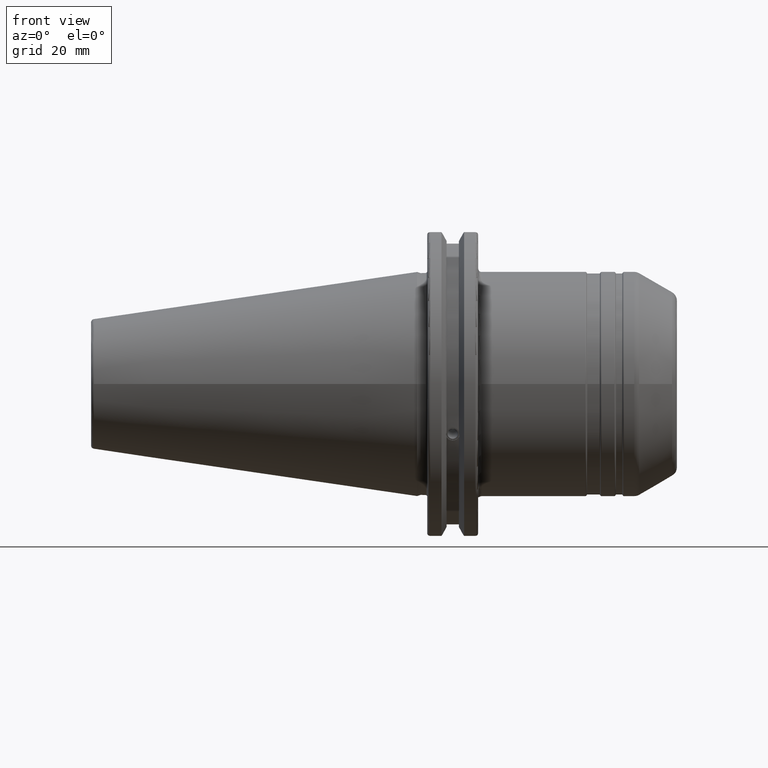
[diagram: clean part render]
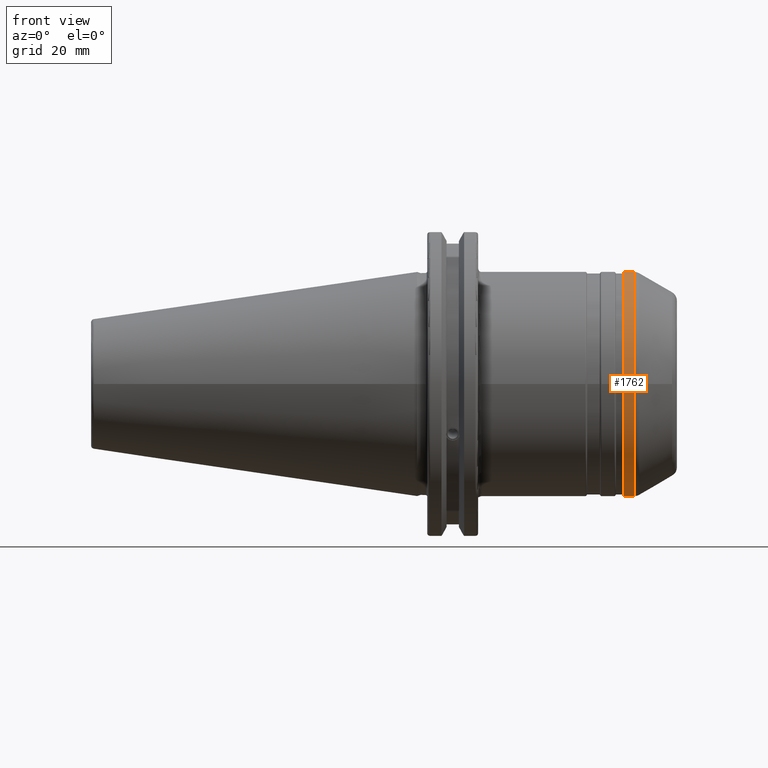
[diagram: same view with one face highlighted and labeled with its STEP entity id]
A machine part, front view. The second image highlights one B-rep face of the part: STEP entity #1762.
In plain terms, the highlighted cylindrical surface (bore or boss wall) has radius 34.95 mm, axis along (1, 0, 0).
Its self-contained STEP definition (entity closure, byte-faithful):
#176=FACE_OUTER_BOUND('',#280,.T.);
#280=EDGE_LOOP('',(#1247,#1248,#1249,#1250,#1251,#1252));
#394=LINE('',#2851,#495);
#495=VECTOR('',#2203,34.95);
#619=CIRCLE('',#1918,34.95);
#620=CIRCLE('',#1919,34.95);
#622=CIRCLE('',#1922,34.95);
#623=CIRCLE('',#1923,34.95);
#738=VERTEX_POINT('',#2842);
#739=VERTEX_POINT('',#2843);
#740=VERTEX_POINT('',#2848);
#741=VERTEX_POINT('',#2849);
#935=EDGE_CURVE('',#738,#739,#619,.T.);
#936=EDGE_CURVE('',#739,#738,#620,.T.);
#938=EDGE_CURVE('',#740,#741,#622,.T.);
#939=EDGE_CURVE('',#740,#739,#394,.T.);
#940=EDGE_CURVE('',#741,#740,#623,.T.);
#1247=ORIENTED_EDGE('',*,*,#938,.F.);
#1248=ORIENTED_EDGE('',*,*,#939,.T.);
#1249=ORIENTED_EDGE('',*,*,#935,.F.);
#1250=ORIENTED_EDGE('',*,*,#936,.F.);
#1251=ORIENTED_EDGE('',*,*,#939,.F.);
#1252=ORIENTED_EDGE('',*,*,#940,.F.);
#1722=CYLINDRICAL_SURFACE('',#1921,34.95);
#1762=ADVANCED_FACE('',(#176),#1722,.T.);
#1918=AXIS2_PLACEMENT_3D('',#2844,#2193,#2194);
#1919=AXIS2_PLACEMENT_3D('',#2845,#2195,#2196);
#1921=AXIS2_PLACEMENT_3D('',#2847,#2199,#2200);
#1922=AXIS2_PLACEMENT_3D('',#2850,#2201,#2202);
#1923=AXIS2_PLACEMENT_3D('',#2852,#2204,#2205);
#2193=DIRECTION('center_axis',(-1.,0.,0.));
#2194=DIRECTION('ref_axis',(0.,-1.,1.83697019872103E-16));
#2195=DIRECTION('center_axis',(-1.,0.,0.));
#2196=DIRECTION('ref_axis',(0.,-1.,1.83697019872103E-16));
#2199=DIRECTION('center_axis',(1.,0.,0.));
#2200=DIRECTION('ref_axis',(0.,1.,0.));
#2201=DIRECTION('center_axis',(1.,0.,0.));
#2202=DIRECTION('ref_axis',(0.,-1.,1.83697019872103E-16));
#2203=DIRECTION('',(-1.,0.,0.));
#2204=DIRECTION('center_axis',(1.,0.,0.));
#2205=DIRECTION('ref_axis',(0.,-1.,1.83697019872103E-16));
#2842=CARTESIAN_POINT('',(64.5196152422706,-4.28014056302E-15,34.95));
#2843=CARTESIAN_POINT('',(64.5196152422706,-34.95,-4.28014056302E-15));
#2844=CARTESIAN_POINT('Origin',(64.5196152422706,0.,0.));
#2845=CARTESIAN_POINT('Origin',(64.5196152422706,0.,0.));
#2847=CARTESIAN_POINT('Origin',(66.4089546600494,0.,0.));
#2848=CARTESIAN_POINT('',(67.7253866082107,-34.95,-4.28014056302E-15));
#2849=CARTESIAN_POINT('',(67.7253866082107,-4.28014056302E-15,34.95));
#2850=CARTESIAN_POINT('Origin',(67.7253866082107,0.,0.));
#2851=CARTESIAN_POINT('',(66.4089546600494,-34.95,-4.28014056302E-15));
#2852=CARTESIAN_POINT('Origin',(67.7253866082107,0.,0.));